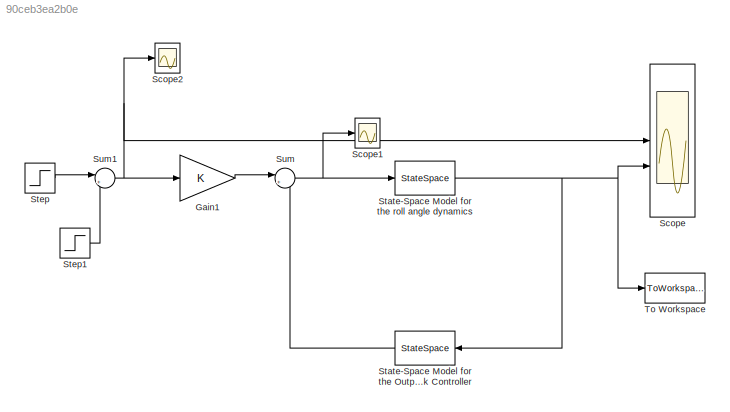
MODEL slx_90ceb3ea2b0e
KIND model
CONFIG AbsTol = auto
CONFIG EnableMultiTasking = off
CONFIG FixedStep = auto
CONFIG MaxStep = auto
CONFIG MinStep = auto
CONFIG RelTol = 1e-3
CONFIG SampleTimeConstraint = Unconstrained
CONFIG SolverName = VariableStepAuto
CONFIG StartTime = 0.0
CONFIG StopTime = 5
BLOCK [Gain] Gain1
BLOCK [Scope] Scope
  Floating = off
  NumInputPorts = 2
  ScopeSpecificationString = Simulink.scopes.TimeScopeBlockCfg('CurrentConfiguration', extmgr.ConfigurationSet(extmgr.Configuration('Core','General UI',true),extmgr.Configuration('Core','Source UI',true),extmgr.Configuration('Sources','WiredSimulink',true),extmgr.Configuration('Visuals','Time Domain',true,'SerializedDisplays',{struct('MinYLimReal','-0.14038','MaxYLimReal','1.26339','YLabelReal','','MinYLimMag','0.00000','MaxY...<+1474ch>
BLOCK [Scope] Scope1
  Floating = off
  NumInputPorts = 1
  ScopeSpecificationString = Simulink.scopes.TimeScopeBlockCfg('CurrentConfiguration', extmgr.ConfigurationSet(extmgr.Configuration('Core','General UI',true),extmgr.Configuration('Core','Source UI',true),extmgr.Configuration('Sources','WiredSimulink',true,'DataLoggingVariableName','ScopeData1'),extmgr.Configuration('Visuals','Time Domain',true,'SerializedDisplays',{struct('MinYLimReal','-5.82856','MaxYLimReal','5.82856','YLab...<+1486ch>
BLOCK [Scope] Scope2
  Floating = off
  NumInputPorts = 1
  ScopeSpecificationString = Simulink.scopes.TimeScopeBlockCfg('CurrentConfiguration', extmgr.ConfigurationSet(extmgr.Configuration('Core','General UI',true),extmgr.Configuration('Core','Source UI',true),extmgr.Configuration('Sources','WiredSimulink',true,'DataLoggingVariableName','ScopeData2'),extmgr.Configuration('Visuals','Time Domain',true,'SerializedDisplays',{struct('MinYLimReal','-5.82856','MaxYLimReal','5.82856','YLab...<+1434ch>
BLOCK [StateSpace] State-Space Model for the Output-Feedback Controller 
  A = [0 1; 0 0]
  B = [0;1]
  C = [0 0]
  D = 2
  InitialCondition = [0 ; 0]
BLOCK [StateSpace] State-Space Model for the roll angle dynamics
  A = [0 1 ; 0 0]
  B = [0;1]
  C = [1 , 0 ]
  D = 0
  InitialCondition = [0 ; 0]
BLOCK [Step] Step
  After = deg2rad(30)
  SampleTime = 0
BLOCK [Step] Step1
  After = deg2rad(30)
  SampleTime = 0
  Time = 5
BLOCK [Sum] Sum
  Inputs = |+-
BLOCK [Sum] Sum1
  Inputs = |+-
BLOCK [ToWorkspace] To Workspace
  FixptAsFi = on
  MaxDataPoints = inf
  SampleTime = 0.05
  SaveFormat = Timeseries
  VariableName = simout
LINE Gain1:1 -> Sum:1
LINE State-Space Model for the Output-Feedback Controller :1 -> Sum:2
NET State-Space Model for the roll angle dynamics:1 -> Scope:2, State-Space Model for the Output-Feedback Controller :1, To Workspace:1
LINE Step1:1 -> Sum1:2
LINE Step:1 -> Sum1:1
NET Sum1:1 -> Gain1:1, Scope2:1, Scope:1
NET Sum:1 -> Scope1:1, State-Space Model for the roll angle dynamics:1
note: NET lines group one-source signal fan-out (src -> all destinations, sorted); 1:1 wires keep LINE
